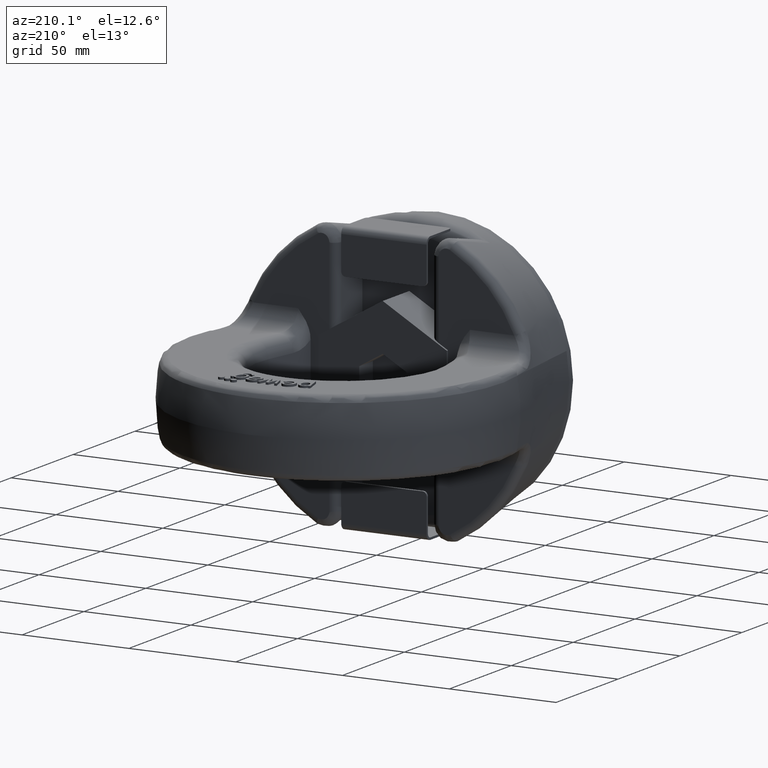
[diagram: clean part render]
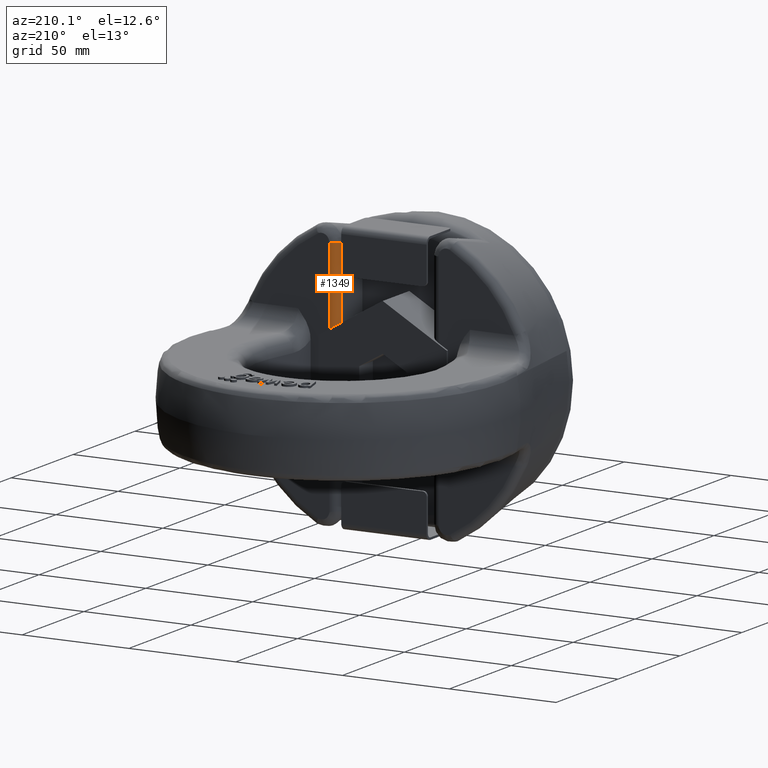
[diagram: same view with one face highlighted and labeled with its STEP entity id]
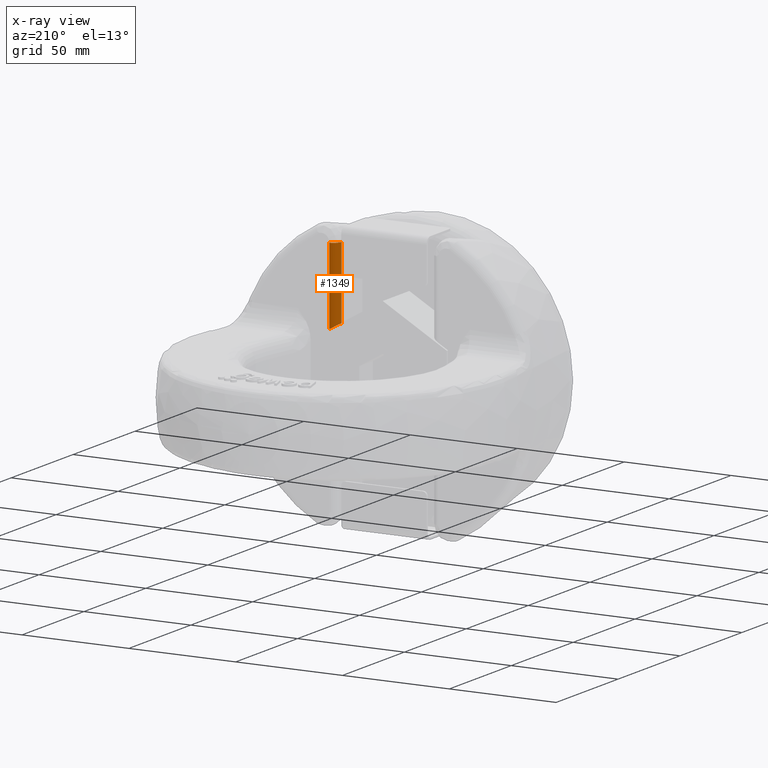
[diagram: x-ray of the same camera — body ghosted, the highlighted face saturated]
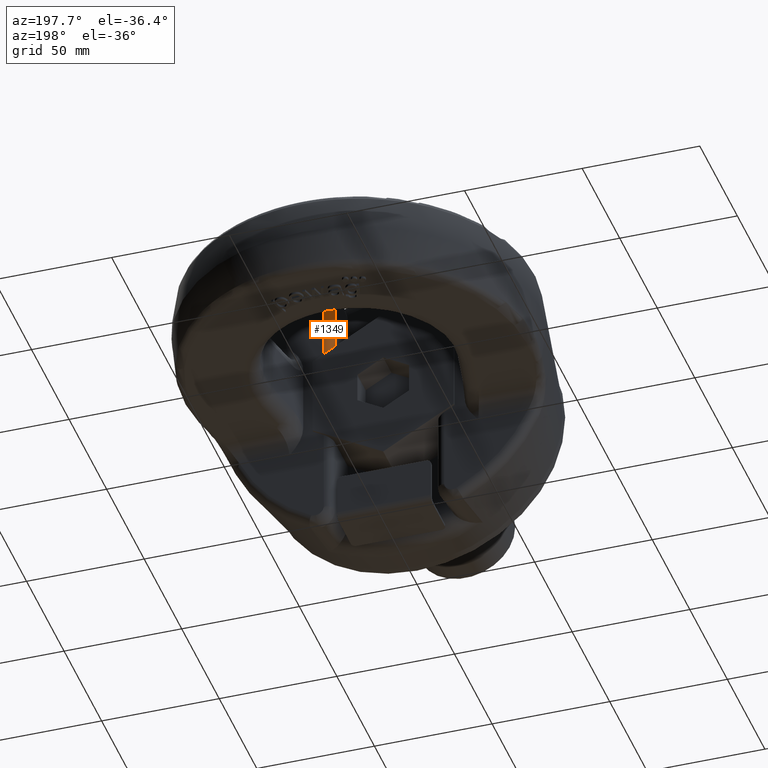
[diagram: same view with one face highlighted and labeled with its STEP entity id]
A machine part, auxiliary view. The second image highlights one B-rep face of the part: STEP entity #1349.
The next image is the same camera in x-ray: the body ghosted, the highlighted face saturated — about 0% of this face is hidden behind the body in this view.
A second angle (auxiliary view) of the same face is appended — the face is thin or edge-on in the first view.
In plain terms, the highlighted cylindrical surface (edge-blend (fillet) strip) has radius 3.6 mm, axis along (0, 0, 1).
Its self-contained STEP definition (entity closure, byte-faithful):
#1048=ELLIPSE('',#5161,4.1569219381653,3.6);
#1062=CYLINDRICAL_SURFACE('',#5193,3.6);
#1125=FACE_OUTER_BOUND('',#1865,.T.);
#1349=ADVANCED_FACE('',(#1125),#1062,.T.);
#1701=CIRCLE('',#5192,3.6);
#1865=EDGE_LOOP('',(#2964,#2965,#2966,#2967));
#2139=LINE('',#6673,#2419);
#2142=LINE('',#6680,#2422);
#2419=VECTOR('',#5463,1.);
#2422=VECTOR('',#5468,1.);
#2964=ORIENTED_EDGE('',*,*,#4411,.F.);
#2965=ORIENTED_EDGE('',*,*,#4356,.F.);
#2966=ORIENTED_EDGE('',*,*,#4445,.T.);
#2967=ORIENTED_EDGE('',*,*,#4359,.F.);
#3966=VERTEX_POINT('',#6672);
#3967=VERTEX_POINT('',#6674);
#3969=VERTEX_POINT('',#6679);
#3970=VERTEX_POINT('',#6681);
#4356=EDGE_CURVE('',#3966,#3967,#2139,.T.);
#4359=EDGE_CURVE('',#3969,#3970,#2142,.T.);
#4411=EDGE_CURVE('',#3967,#3969,#1048,.T.);
#4445=EDGE_CURVE('',#3966,#3970,#1701,.T.);
#5161=AXIS2_PLACEMENT_3D('',#6901,#5543,#5544);
#5192=AXIS2_PLACEMENT_3D('',#7119,#5619,#5620);
#5193=AXIS2_PLACEMENT_3D('',#7150,#5621,#5622);
#5463=DIRECTION('',(0.,0.,-1.));
#5468=DIRECTION('',(0.,0.,1.));
#5543=DIRECTION('',(-0.499999999999999,0.,-0.86602540378444));
#5544=DIRECTION('',(-0.866025403784439,0.,0.499999999999999));
#5619=DIRECTION('',(-6.64977332457876E-13,6.8039709668868E-13,-1.));
#5620=DIRECTION('',(0.,1.,6.80397096688681E-13));
#5621=DIRECTION('',(0.,0.,1.));
#5622=DIRECTION('',(1.,0.,0.));
#6672=CARTESIAN_POINT('',(22.,40.400000000001,55.7772773716995));
#6673=CARTESIAN_POINT('',(22.,40.4,83.6));
#6674=CARTESIAN_POINT('',(22.,40.4,21.9393102292058));
#6679=CARTESIAN_POINT('',(25.6,44.,19.8608492601231));
#6680=CARTESIAN_POINT('',(25.6,44.,83.6));
#6681=CARTESIAN_POINT('',(25.6,44.,55.7772773717043));
#6901=CARTESIAN_POINT('',(25.6,40.4,19.8608492601231));
#7119=CARTESIAN_POINT('',(25.6,40.4,55.7772773717018));
#7150=CARTESIAN_POINT('',(25.6,40.4,83.6));